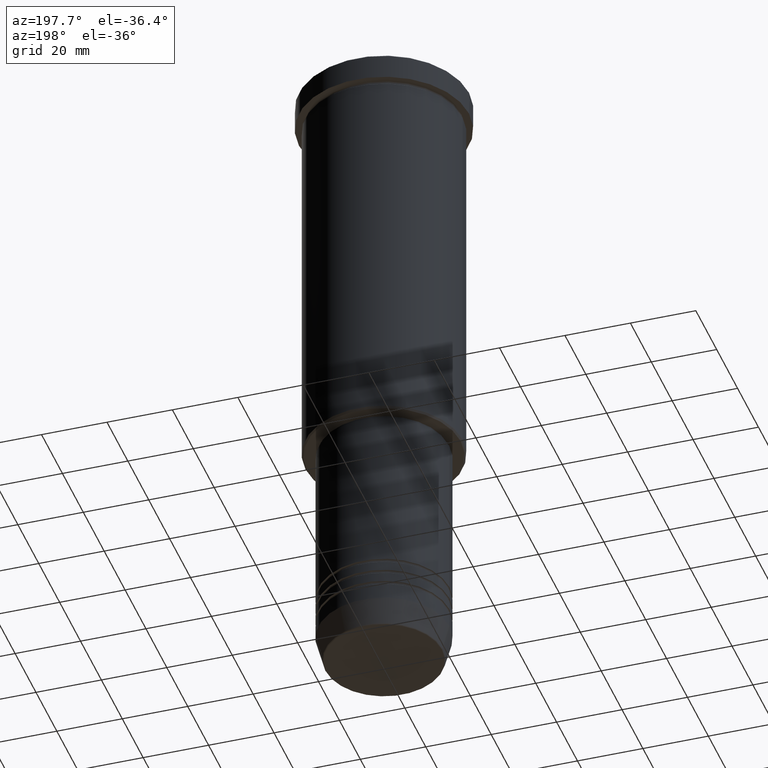
[diagram: clean part render]
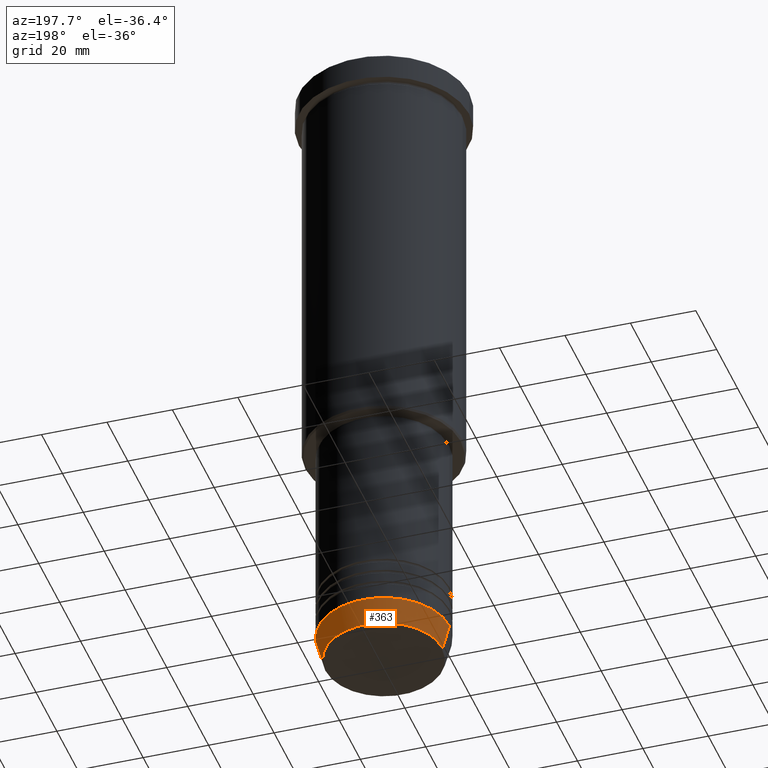
[diagram: same view with one face highlighted and labeled with its STEP entity id]
A machine part, auxiliary view. The second image highlights one B-rep face of the part: STEP entity #363.
In plain terms, the highlighted conical surface has half-angle 15 deg.
Its self-contained STEP definition (entity closure, byte-faithful):
#22 = EDGE_CURVE ( 'NONE', #1172, #1081, #196, .T. ) ;
#43 = DIRECTION ( 'NONE',  ( -0.000000000000000000, -0.000000000000000000, 1.000000000000000000 ) ) ;
#44 = DIRECTION ( 'NONE',  ( 1.000000000000000000, 0.000000000000000000, 0.000000000000000000 ) ) ;
#49 = CIRCLE ( 'NONE', #122, 20.00000000000000355 ) ;
#53 = CARTESIAN_POINT ( 'NONE',  ( 20.00000000000000355, 0.000000000000000000, -192.0000000000000284 ) ) ;
#86 = AXIS2_PLACEMENT_3D ( 'NONE', #863, #43, #961 ) ;
#98 = DIRECTION ( 'NONE',  ( -0.000000000000000000, -0.000000000000000000, 1.000000000000000000 ) ) ;
#111 = VERTEX_POINT ( 'NONE', #307 ) ;
#120 = VERTEX_POINT ( 'NONE', #625 ) ;
#122 = AXIS2_PLACEMENT_3D ( 'NONE', #1049, #1161, #44 ) ;
#196 = LINE ( 'NONE', #737, #574 ) ;
#307 = CARTESIAN_POINT ( 'NONE',  ( -17.95570587970607690, 2.324116685748021371E-15, -199.6294095225512990 ) ) ;
#319 = DIRECTION ( 'NONE',  ( -0.2588190451025213501, 3.169619151431772337E-17, 0.9659258262890680902 ) ) ;
#363 = ADVANCED_FACE ( 'NONE', ( #550 ), #449, .T. ) ;
#409 = CARTESIAN_POINT ( 'NONE',  ( -20.00000000000000355, 2.449293598294706907E-15, -192.0000000000000284 ) ) ;
#434 = ORIENTED_EDGE ( 'NONE', *, *, #668, .T. ) ;
#449 = CONICAL_SURFACE ( 'NONE', #755, 20.00000000000000355, 0.2617993877991500740 ) ;
#462 = DIRECTION ( 'NONE',  ( 1.000000000000000000, 0.000000000000000000, 0.000000000000000000 ) ) ;
#500 = CIRCLE ( 'NONE', #86, 17.95570587970607690 ) ;
#550 = FACE_OUTER_BOUND ( 'NONE', #626, .T. ) ;
#574 = VECTOR ( 'NONE', #937, 1000.000000000000000 ) ;
#577 = VECTOR ( 'NONE', #319, 1000.000000000000000 ) ;
#601 = CARTESIAN_POINT ( 'NONE',  ( 17.95570587970607690, 0.000000000000000000, -199.6294095225512990 ) ) ;
#625 = CARTESIAN_POINT ( 'NONE',  ( -20.00000000000000355, 2.449293598294706907E-15, -192.0000000000000284 ) ) ;
#626 = EDGE_LOOP ( 'NONE', ( #884, #434, #838, #963 ) ) ;
#668 = EDGE_CURVE ( 'NONE', #111, #120, #874, .T. ) ;
#737 = CARTESIAN_POINT ( 'NONE',  ( 20.00000000000000355, 0.000000000000000000, -192.0000000000000284 ) ) ;
#755 = AXIS2_PLACEMENT_3D ( 'NONE', #923, #98, #462 ) ;
#838 = ORIENTED_EDGE ( 'NONE', *, *, #984, .F. ) ;
#863 = CARTESIAN_POINT ( 'NONE',  ( 0.000000000000000000, 0.000000000000000000, -199.6294095225512990 ) ) ;
#874 = LINE ( 'NONE', #409, #577 ) ;
#884 = ORIENTED_EDGE ( 'NONE', *, *, #1118, .T. ) ;
#923 = CARTESIAN_POINT ( 'NONE',  ( 0.000000000000000000, 0.000000000000000000, -192.0000000000000284 ) ) ;
#937 = DIRECTION ( 'NONE',  ( 0.2588190451025213501, 0.000000000000000000, 0.9659258262890680902 ) ) ;
#961 = DIRECTION ( 'NONE',  ( 1.000000000000000000, 0.000000000000000000, 0.000000000000000000 ) ) ;
#963 = ORIENTED_EDGE ( 'NONE', *, *, #22, .F. ) ;
#984 = EDGE_CURVE ( 'NONE', #1081, #120, #49, .T. ) ;
#1049 = CARTESIAN_POINT ( 'NONE',  ( 0.000000000000000000, 0.000000000000000000, -192.0000000000000284 ) ) ;
#1081 = VERTEX_POINT ( 'NONE', #53 ) ;
#1118 = EDGE_CURVE ( 'NONE', #1172, #111, #500, .T. ) ;
#1161 = DIRECTION ( 'NONE',  ( -0.000000000000000000, -0.000000000000000000, 1.000000000000000000 ) ) ;
#1172 = VERTEX_POINT ( 'NONE', #601 ) ;